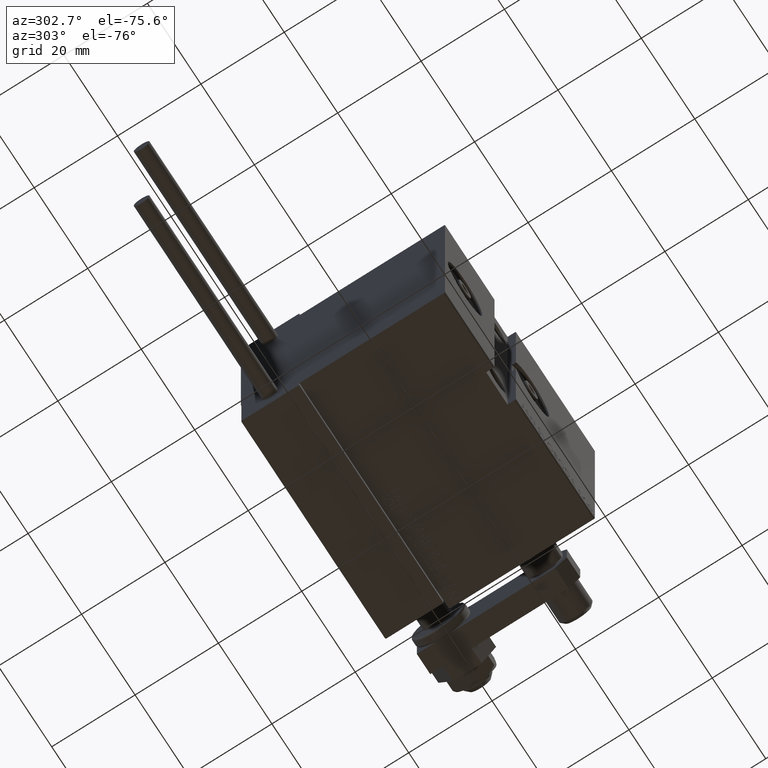
[diagram: clean part render]
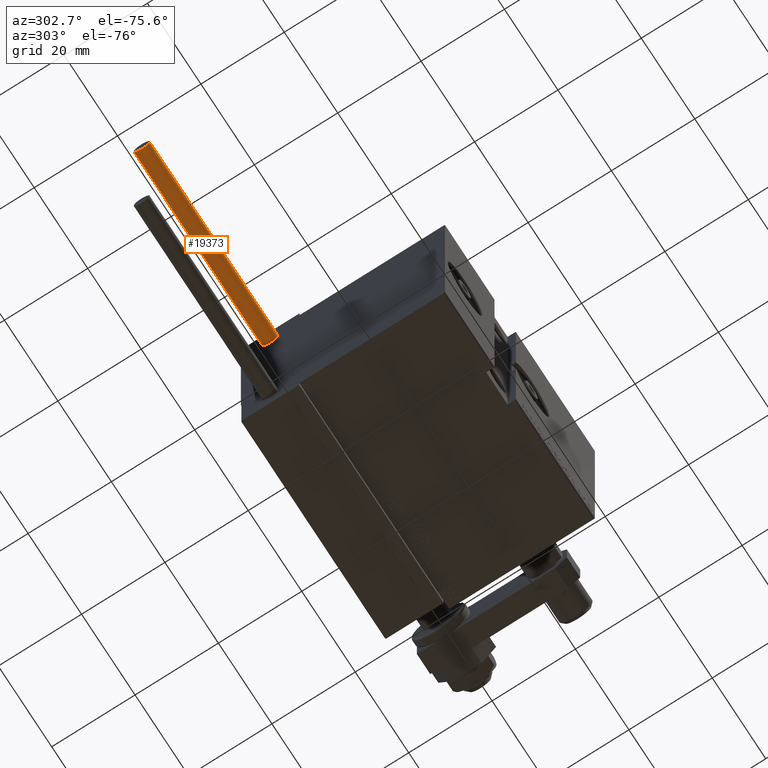
[diagram: same view with one face highlighted and labeled with its STEP entity id]
A machine part, auxiliary view. The second image highlights one B-rep face of the part: STEP entity #19373.
In plain terms, the highlighted cylindrical surface (edge-blend (fillet) strip) has radius 1.9 mm, axis along (1, 0, -0).
Its self-contained STEP definition (entity closure, byte-faithful):
#651 = AXIS2_PLACEMENT_3D ( 'NONE', #23172, #11455, #12475 ) ;
#1815 = CARTESIAN_POINT ( 'NONE',  ( 0.000000000000000000, 0.000000000000000000, 0.000000000000000000 ) ) ;
#2128 = CARTESIAN_POINT ( 'NONE',  ( 1.899999999999999467, 2.326828918379970872E-16, 48.00000000000000000 ) ) ;
#2684 = LINE ( 'NONE', #21791, #17584 ) ;
#4870 = CIRCLE ( 'NONE', #30129, 1.899999999999999467 ) ;
#5395 = ORIENTED_EDGE ( 'NONE', *, *, #11555, .T. ) ;
#7052 = EDGE_LOOP ( 'NONE', ( #26490, #5395, #14781, #28831 ) ) ;
#8195 = VERTEX_POINT ( 'NONE', #34187 ) ;
#8363 = DIRECTION ( 'NONE',  ( -1.000000000000000000, 0.000000000000000000, 0.000000000000000000 ) ) ;
#10383 = CARTESIAN_POINT ( 'NONE',  ( 1.899999999999999467, 2.326828918379970872E-16, 48.00000000000000000 ) ) ;
#11455 = DIRECTION ( 'NONE',  ( 0.000000000000000000, 0.000000000000000000, 1.000000000000000000 ) ) ;
#11555 = EDGE_CURVE ( 'NONE', #23695, #29586, #48537, .T. ) ;
#12475 = DIRECTION ( 'NONE',  ( 1.000000000000000000, 0.000000000000000000, 0.000000000000000000 ) ) ;
#13028 = DIRECTION ( 'NONE',  ( 1.000000000000000000, 0.000000000000000000, 0.000000000000000000 ) ) ;
#14477 = EDGE_CURVE ( 'NONE', #28086, #8195, #2684, .T. ) ;
#14482 = CIRCLE ( 'NONE', #651, 1.899999999999999467 ) ;
#14781 = ORIENTED_EDGE ( 'NONE', *, *, #26047, .T. ) ;
#15253 = CYLINDRICAL_SURFACE ( 'NONE', #16895, 1.899999999999999467 ) ;
#15749 = FACE_OUTER_BOUND ( 'NONE', #7052, .T. ) ;
#16895 = AXIS2_PLACEMENT_3D ( 'NONE', #30796, #35392, #8363 ) ;
#17584 = VECTOR ( 'NONE', #26124, 1000.000000000000000 ) ;
#19373 = ADVANCED_FACE ( 'NONE', ( #15749 ), #15253, .T. ) ;
#21446 = EDGE_CURVE ( 'NONE', #23695, #28086, #14482, .T. ) ;
#21791 = CARTESIAN_POINT ( 'NONE',  ( -1.899999999999999467, 0.000000000000000000, 48.00000000000000000 ) ) ;
#22029 = CARTESIAN_POINT ( 'NONE',  ( 1.899999999999999467, 2.326828918379970872E-16, 0.000000000000000000 ) ) ;
#23172 = CARTESIAN_POINT ( 'NONE',  ( 0.000000000000000000, 0.000000000000000000, 48.00000000000000000 ) ) ;
#23400 = CARTESIAN_POINT ( 'NONE',  ( -1.899999999999999467, 0.000000000000000000, 48.00000000000000000 ) ) ;
#23695 = VERTEX_POINT ( 'NONE', #10383 ) ;
#26047 = EDGE_CURVE ( 'NONE', #29586, #8195, #4870, .T. ) ;
#26124 = DIRECTION ( 'NONE',  ( -0.000000000000000000, -0.000000000000000000, -1.000000000000000000 ) ) ;
#26490 = ORIENTED_EDGE ( 'NONE', *, *, #21446, .F. ) ;
#28086 = VERTEX_POINT ( 'NONE', #23400 ) ;
#28831 = ORIENTED_EDGE ( 'NONE', *, *, #14477, .F. ) ;
#29586 = VERTEX_POINT ( 'NONE', #22029 ) ;
#30129 = AXIS2_PLACEMENT_3D ( 'NONE', #1815, #32399, #13028 ) ;
#30482 = VECTOR ( 'NONE', #45191, 1000.000000000000000 ) ;
#30796 = CARTESIAN_POINT ( 'NONE',  ( 0.000000000000000000, 0.000000000000000000, 48.00000000000000000 ) ) ;
#32399 = DIRECTION ( 'NONE',  ( 0.000000000000000000, 0.000000000000000000, 1.000000000000000000 ) ) ;
#34187 = CARTESIAN_POINT ( 'NONE',  ( -1.899999999999999467, 0.000000000000000000, 0.000000000000000000 ) ) ;
#35392 = DIRECTION ( 'NONE',  ( -0.000000000000000000, -0.000000000000000000, -1.000000000000000000 ) ) ;
#45191 = DIRECTION ( 'NONE',  ( -0.000000000000000000, -0.000000000000000000, -1.000000000000000000 ) ) ;
#48537 = LINE ( 'NONE', #2128, #30482 ) ;